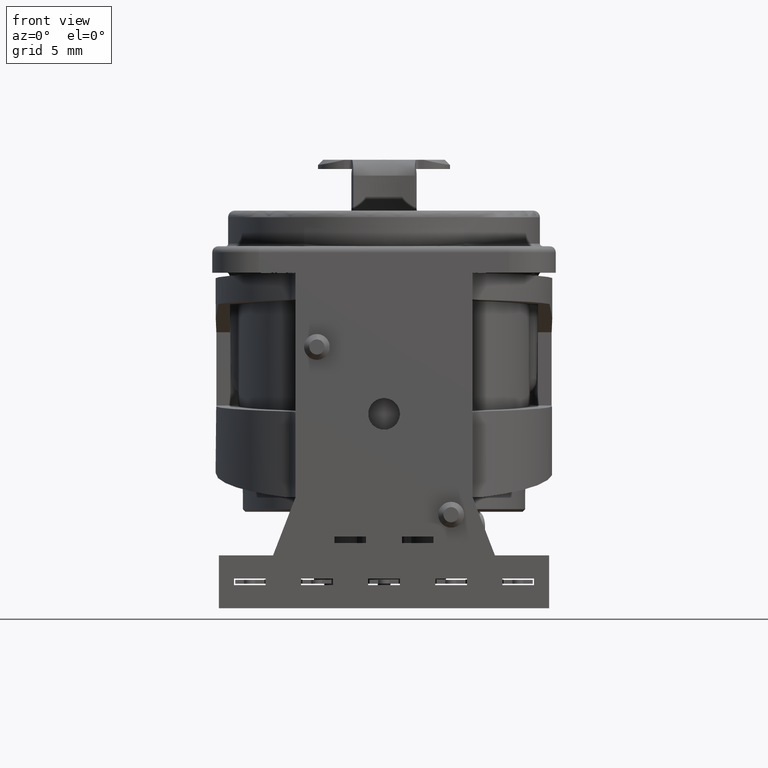
[diagram: clean part render]
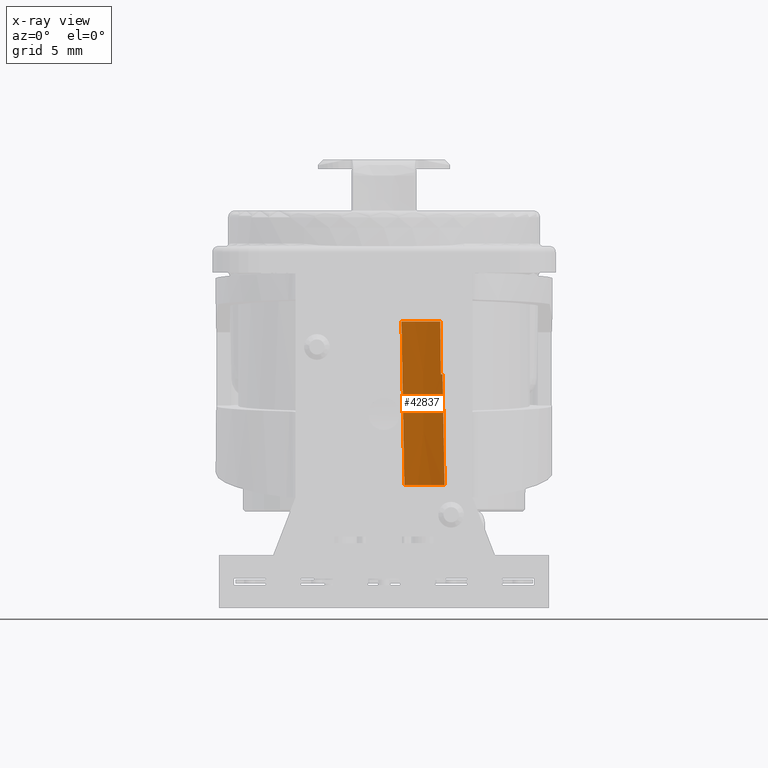
[diagram: x-ray — body ghosted, one internal face saturated and labeled with its STEP entity id]
A machine part, front view, then the same camera in x-ray: the body is ghosted and one INTERNAL B-rep face — a face not visible from any outside direction — is saturated and labeled: STEP entity #42837.
In plain terms, the highlighted conical surface has half-angle 0.5 deg.
Its self-contained STEP definition (entity closure, byte-faithful):
#12706=CARTESIAN_POINT('',(1.323311272699E0,1.095703213879E1,
-3.699999999999E0));
#12711=CARTESIAN_POINT('',(1.323311272698E0,1.095703213879E1,
-3.699999999960E0));
#12712=CARTESIAN_POINT('',(1.395458802151E0,1.098465181299E1,
-7.833329194070E0));
#12713=CARTESIAN_POINT('',(1.467606404384E0,1.101163270050E1,
-1.196666255775E1));
#12714=CARTESIAN_POINT('',(1.539754077808E0,1.103798875052E1,
-1.609999999996E1));
#12727=CARTESIAN_POINT('',(0.E0,0.E0,-3.7E0));
#12728=DIRECTION('',(0.E0,0.E0,1.E0));
#12729=DIRECTION('',(3.857495360547E-1,9.226035418497E-1,0.E0));
#12730=AXIS2_PLACEMENT_3D('',#12727,#12728,#12729);
#12732=CARTESIAN_POINT('',(0.E0,0.E0,-7.698254692900E0));
#12733=DIRECTION('',(0.E0,0.E0,1.E0));
#12734=DIRECTION('',(4.004347062221E-1,9.163252948887E-1,0.E0));
#12735=AXIS2_PLACEMENT_3D('',#12732,#12733,#12734);
#12737=CARTESIAN_POINT('',(4.582227094572E0,1.015929295745E1,-1.61E1));
#12738=CARTESIAN_POINT('',(4.557353839667E0,1.015706485296E1,
-1.469540211457E1));
#12739=CARTESIAN_POINT('',(4.507681282195E0,1.015247671263E1,
-1.189051333766E1));
#12740=CARTESIAN_POINT('',(4.458156387557E0,1.014762678738E1,
-9.094238569197E0));
#12741=CARTESIAN_POINT('',(4.433430886132E0,1.014513682238E1,
-7.698254692900E0));
#12743=CARTESIAN_POINT('',(0.E0,0.E0,-1.61E1));
#12744=DIRECTION('',(0.E0,0.E0,1.E0));
#12745=DIRECTION('',(4.111513745860E-1,9.115670832013E-1,0.E0));
#12746=AXIS2_PLACEMENT_3D('',#12743,#12744,#12745);
#12772=CARTESIAN_POINT('',(4.257383714447E0,1.018245500471E1,-3.7E0));
#12774=CARTESIAN_POINT('',(4.302907450364E0,1.020118120802E1,
-7.698254692900E0));
#12775=CARTESIAN_POINT('',(4.295310060809E0,1.019806298718E1,
-7.030686282349E0));
#12776=CARTESIAN_POINT('',(4.280125380413E0,1.019182372880E1,
-5.696742089683E0));
#12777=CARTESIAN_POINT('',(4.264960902007E0,1.018557884796E1,
-4.365183153783E0));
#12778=CARTESIAN_POINT('',(4.257383714448E0,1.018245500471E1,-3.7E0));
#19423=CARTESIAN_POINT('',(4.433430903465E0,1.014513681472E1,
-7.698254692900E0));
#19424=CARTESIAN_POINT('',(4.302907450364E0,1.020118120802E1,
-7.698254692900E0));
#19425=VERTEX_POINT('',#19423);
#19426=VERTEX_POINT('',#19424);
#19427=VERTEX_POINT('',#12737);
#19433=CARTESIAN_POINT('',(1.539754077808E0,1.103798875052E1,-1.61E1));
#19434=VERTEX_POINT('',#19433);
#23393=VERTEX_POINT('',#12772);
#23398=VERTEX_POINT('',#12706);
#42822=CARTESIAN_POINT('',(0.E0,0.E0,-9.9E0));
#42823=DIRECTION('',(0.E0,0.E0,-1.E0));
#42824=DIRECTION('',(-1.E0,0.E0,0.E0));
#42825=AXIS2_PLACEMENT_3D('',#42822,#42823,#42824);
#42826=CONICAL_SURFACE('',#42825,1.109075942502E1,5.E-1);
#42827=ORIENTED_EDGE('',*,*,#24178,.F.);
#42829=ORIENTED_EDGE('',*,*,#42828,.F.);
#42831=ORIENTED_EDGE('',*,*,#42830,.F.);
#42832=ORIENTED_EDGE('',*,*,#24004,.F.);
#42833=ORIENTED_EDGE('',*,*,#23754,.T.);
#42834=ORIENTED_EDGE('',*,*,#42813,.F.);
#42835=EDGE_LOOP('',(#42827,#42829,#42831,#42832,#42833,#42834));
#42836=FACE_OUTER_BOUND('',#42835,.F.);
#42837=ADVANCED_FACE('',(#42836),#42826,.F.);
#12715=B_SPLINE_CURVE_WITH_KNOTS('',3,(#12711,#12712,#12713,#12714),
.UNSPECIFIED.,.F.,.F.,(4,4),(0.E0,1.E0),.UNSPECIFIED.);
#12731=CIRCLE('',#12730,1.103665284472E1);
#12736=CIRCLE('',#12735,1.107154508482E1);
#12742=B_SPLINE_CURVE_WITH_KNOTS('',3,(#12737,#12738,#12739,#12740,#12741),
.UNSPECIFIED.,.F.,.F.,(4,1,4),(0.E0,5.E-1,1.E0),.UNSPECIFIED.);
#12747=CIRCLE('',#12746,1.114486600533E1);
#12779=B_SPLINE_CURVE_WITH_KNOTS('',3,(#12774,#12775,#12776,#12777,#12778),
.UNSPECIFIED.,.F.,.F.,(4,1,4),(0.E0,5.E-1,1.E0),.UNSPECIFIED.);
#23754=EDGE_CURVE('',#19427,#19434,#12747,.T.);
#24004=EDGE_CURVE('',#19427,#19425,#12742,.T.);
#24178=EDGE_CURVE('',#23393,#23398,#12731,.T.);
#42813=EDGE_CURVE('',#23398,#19434,#12715,.T.);
#42828=EDGE_CURVE('',#19426,#23393,#12779,.T.);
#42830=EDGE_CURVE('',#19425,#19426,#12736,.T.);